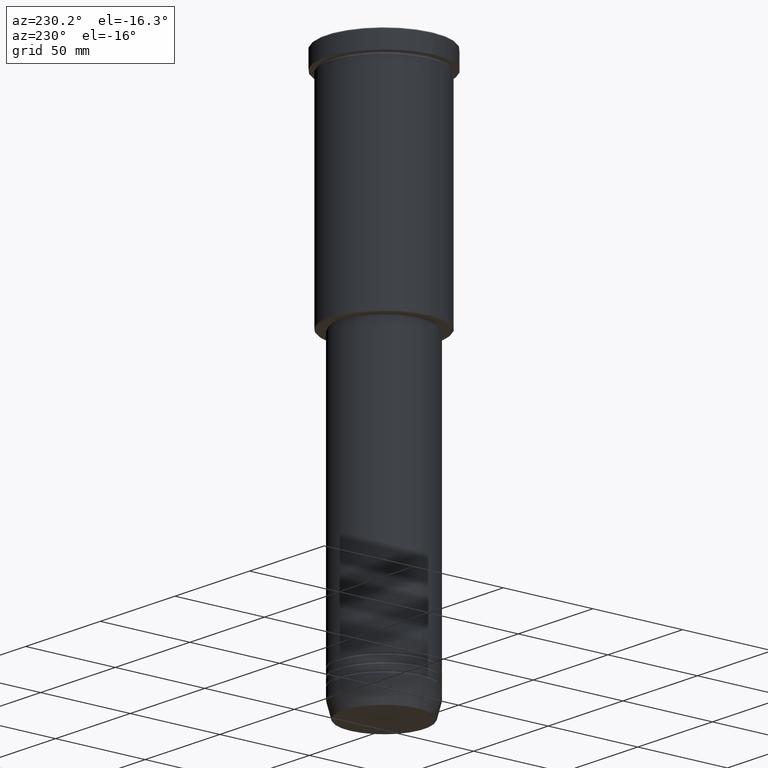
[diagram: clean part render]
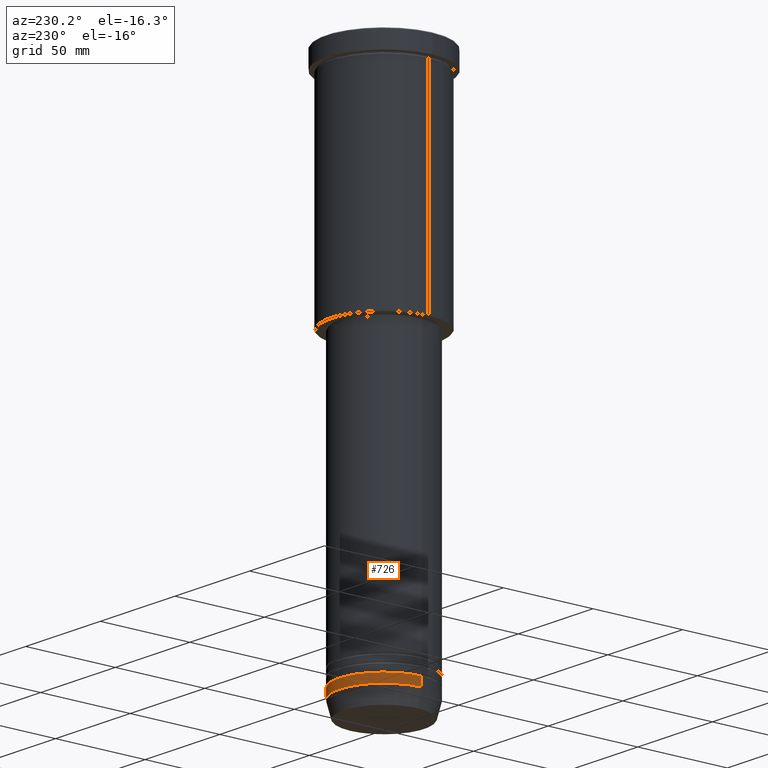
[diagram: same view with one face highlighted and labeled with its STEP entity id]
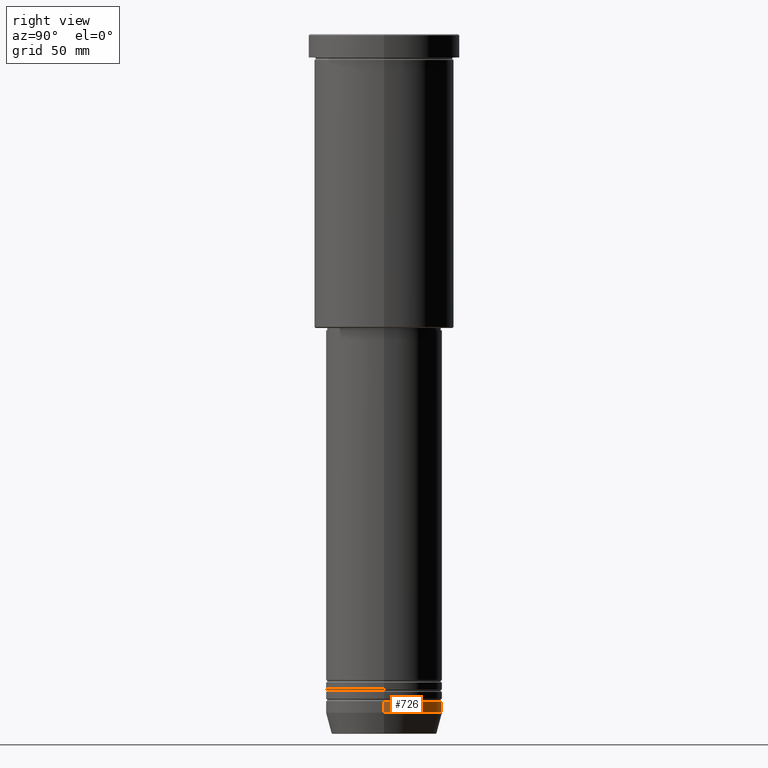
[diagram: same view with one face highlighted and labeled with its STEP entity id]
A machine part, auxiliary view. The second image highlights one B-rep face of the part: STEP entity #726.
A second angle (right view) of the same face is appended — the face is thin or edge-on in the first view.
In plain terms, the highlighted cylindrical surface (partial cylindrical patch) has radius 25 mm, axis along (-0, -0, 1).
Its self-contained STEP definition (entity closure, byte-faithful):
#17 = CARTESIAN_POINT ( 'NONE',  ( -25.00000000000000000, 3.061616997868383043E-15, 0.000000000000000000 ) ) ;
#33 = CARTESIAN_POINT ( 'NONE',  ( -25.00000000000000000, 3.061616997868383043E-15, -291.0000000000000000 ) ) ;
#34 = AXIS2_PLACEMENT_3D ( 'NONE', #750, #397, #765 ) ;
#140 = AXIS2_PLACEMENT_3D ( 'NONE', #1139, #775, #783 ) ;
#163 = EDGE_LOOP ( 'NONE', ( #516, #633, #947, #962 ) ) ;
#173 = EDGE_CURVE ( 'NONE', #466, #991, #298, .T. ) ;
#207 = CARTESIAN_POINT ( 'NONE',  ( -25.00000000000000000, 3.061616997868383043E-15, -286.0000000000000000 ) ) ;
#298 = CIRCLE ( 'NONE', #34, 25.00000000000000000 ) ;
#397 = DIRECTION ( 'NONE',  ( -0.000000000000000000, -0.000000000000000000, 1.000000000000000000 ) ) ;
#417 = CIRCLE ( 'NONE', #140, 25.00000000000000000 ) ;
#466 = VERTEX_POINT ( 'NONE', #669 ) ;
#472 = CARTESIAN_POINT ( 'NONE',  ( 0.000000000000000000, 0.000000000000000000, 0.000000000000000000 ) ) ;
#490 = VECTOR ( 'NONE', #1018, 1000.000000000000000 ) ;
#496 = EDGE_CURVE ( 'NONE', #991, #985, #576, .T. ) ;
#516 = ORIENTED_EDGE ( 'NONE', *, *, #173, .T. ) ;
#518 = EDGE_CURVE ( 'NONE', #466, #1110, #878, .T. ) ;
#526 = VECTOR ( 'NONE', #713, 1000.000000000000000 ) ;
#576 = LINE ( 'NONE', #17, #490 ) ;
#633 = ORIENTED_EDGE ( 'NONE', *, *, #496, .T. ) ;
#651 = CYLINDRICAL_SURFACE ( 'NONE', #938, 25.00000000000000000 ) ;
#669 = CARTESIAN_POINT ( 'NONE',  ( 25.00000000000000000, 0.000000000000000000, -291.0000000000000000 ) ) ;
#713 = DIRECTION ( 'NONE',  ( -0.000000000000000000, -0.000000000000000000, 1.000000000000000000 ) ) ;
#726 = ADVANCED_FACE ( 'NONE', ( #1100 ), #651, .T. ) ;
#750 = CARTESIAN_POINT ( 'NONE',  ( 0.000000000000000000, 0.000000000000000000, -291.0000000000000000 ) ) ;
#765 = DIRECTION ( 'NONE',  ( 1.000000000000000000, 0.000000000000000000, 0.000000000000000000 ) ) ;
#775 = DIRECTION ( 'NONE',  ( -0.000000000000000000, -0.000000000000000000, 1.000000000000000000 ) ) ;
#783 = DIRECTION ( 'NONE',  ( 1.000000000000000000, 0.000000000000000000, 0.000000000000000000 ) ) ;
#803 = CARTESIAN_POINT ( 'NONE',  ( 25.00000000000000000, 0.000000000000000000, -286.0000000000000000 ) ) ;
#878 = LINE ( 'NONE', #1148, #526 ) ;
#928 = DIRECTION ( 'NONE',  ( -0.000000000000000000, -0.000000000000000000, 1.000000000000000000 ) ) ;
#938 = AXIS2_PLACEMENT_3D ( 'NONE', #472, #928, #997 ) ;
#943 = EDGE_CURVE ( 'NONE', #1110, #985, #417, .T. ) ;
#947 = ORIENTED_EDGE ( 'NONE', *, *, #943, .F. ) ;
#962 = ORIENTED_EDGE ( 'NONE', *, *, #518, .F. ) ;
#985 = VERTEX_POINT ( 'NONE', #207 ) ;
#991 = VERTEX_POINT ( 'NONE', #33 ) ;
#997 = DIRECTION ( 'NONE',  ( 1.000000000000000000, 0.000000000000000000, 0.000000000000000000 ) ) ;
#1018 = DIRECTION ( 'NONE',  ( -0.000000000000000000, -0.000000000000000000, 1.000000000000000000 ) ) ;
#1100 = FACE_OUTER_BOUND ( 'NONE', #163, .T. ) ;
#1110 = VERTEX_POINT ( 'NONE', #803 ) ;
#1139 = CARTESIAN_POINT ( 'NONE',  ( 0.000000000000000000, 0.000000000000000000, -286.0000000000000000 ) ) ;
#1148 = CARTESIAN_POINT ( 'NONE',  ( 25.00000000000000000, 0.000000000000000000, 0.000000000000000000 ) ) ;